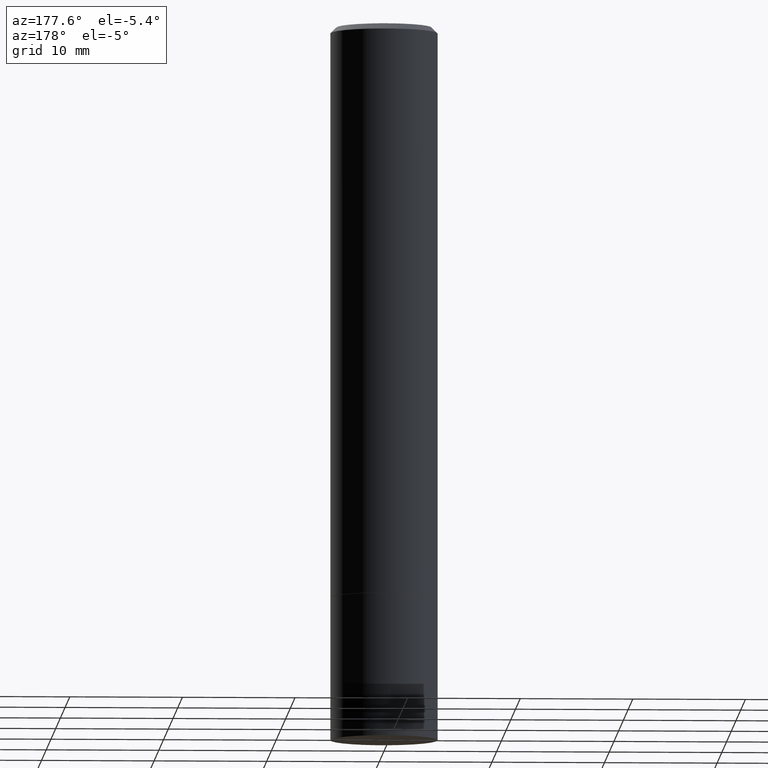
[diagram: clean part render]
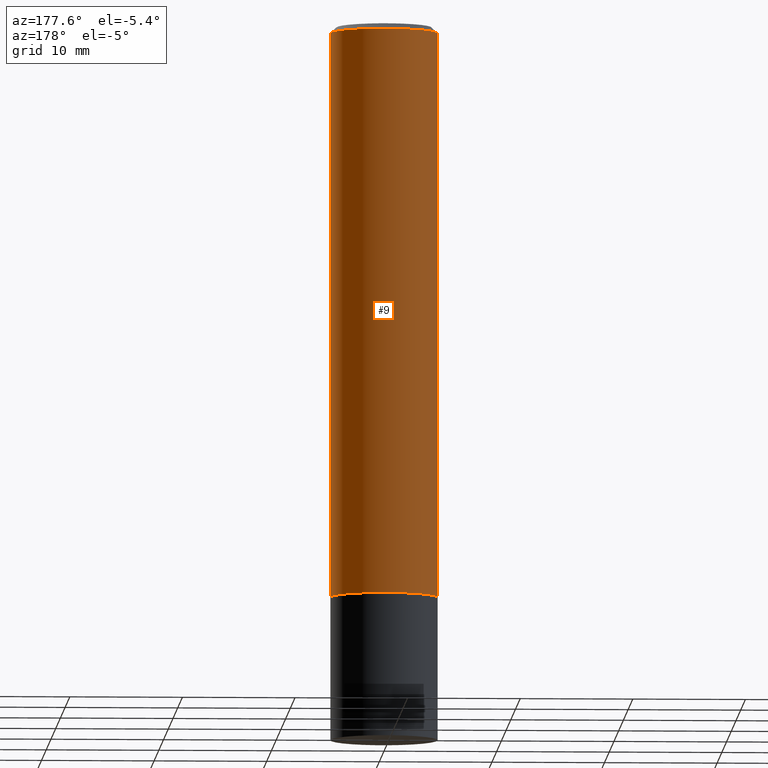
[diagram: same view with one face highlighted and labeled with its STEP entity id]
A machine part, auxiliary view. The second image highlights one B-rep face of the part: STEP entity #9.
In plain terms, the highlighted cylindrical surface (partial cylindrical patch) has radius 4.7625 mm, axis along (-0, 0, 1).
Its self-contained STEP definition (entity closure, byte-faithful):
#9 = ADVANCED_FACE ( 'NONE', ( #309 ), #48, .T. ) ;
#42 = CARTESIAN_POINT ( 'NONE',  ( 0.1875000000000000555, -8.288776698413622377E-15, -1.998999999999999888 ) ) ;
#48 = CYLINDRICAL_SURFACE ( 'NONE', #103, 0.1874999999999999167 ) ;
#51 = ORIENTED_EDGE ( 'NONE', *, *, #188, .F. ) ;
#59 = CARTESIAN_POINT ( 'NONE',  ( -0.1874999999999997780, 1.239475875289310330E-15, -0.02000000000000004205 ) ) ;
#81 = ORIENTED_EDGE ( 'NONE', *, *, #84, .T. ) ;
#84 = EDGE_CURVE ( 'NONE', #288, #102, #91, .T. ) ;
#91 = LINE ( 'NONE', #320, #162 ) ;
#99 = CARTESIAN_POINT ( 'NONE',  ( 0.1874999999999997780, -1.356173001359023691E-15, -0.02000000000000004205 ) ) ;
#102 = VERTEX_POINT ( 'NONE', #59 ) ;
#103 = AXIS2_PLACEMENT_3D ( 'NONE', #166, #180, #294 ) ;
#119 = CIRCLE ( 'NONE', #198, 0.1875000000000000555 ) ;
#122 = DIRECTION ( 'NONE',  ( -2.445468806185136877E-29, 3.491481338843145188E-15, 1.000000000000000000 ) ) ;
#153 = EDGE_CURVE ( 'NONE', #199, #299, #205, .T. ) ;
#159 = DIRECTION ( 'NONE',  ( 1.000000000000000000, -6.982962677686265922E-15, 0.000000000000000000 ) ) ;
#162 = VECTOR ( 'NONE', #122, 39.37007874015748143 ) ;
#166 = CARTESIAN_POINT ( 'NONE',  ( 0.000000000000000000, 0.000000000000000000, 0.000000000000000000 ) ) ;
#170 = ORIENTED_EDGE ( 'NONE', *, *, #153, .F. ) ;
#172 = EDGE_CURVE ( 'NONE', #199, #288, #119, .T. ) ;
#180 = DIRECTION ( 'NONE',  ( -2.445468806185136597E-29, 3.491481338843145583E-15, 1.000000000000000000 ) ) ;
#188 = EDGE_CURVE ( 'NONE', #299, #102, #343, .T. ) ;
#191 = DIRECTION ( 'NONE',  ( 1.000000000000000000, -6.982962677686265133E-15, 0.000000000000000000 ) ) ;
#198 = AXIS2_PLACEMENT_3D ( 'NONE', #236, #327, #159 ) ;
#199 = VERTEX_POINT ( 'NONE', #42 ) ;
#205 = LINE ( 'NONE', #324, #375 ) ;
#210 = DIRECTION ( 'NONE',  ( -2.445468806185136877E-29, 3.491481338843145188E-15, 1.000000000000000000 ) ) ;
#236 = CARTESIAN_POINT ( 'NONE',  ( 4.888492143564087591E-29, -6.979471196347447369E-15, -1.998999999999999888 ) ) ;
#243 = EDGE_LOOP ( 'NONE', ( #304, #81, #51, #170 ) ) ;
#288 = VERTEX_POINT ( 'NONE', #366 ) ;
#294 = DIRECTION ( 'NONE',  ( 1.000000000000000000, -6.982962677686265922E-15, 4.876176775795935793E-29 ) ) ;
#299 = VERTEX_POINT ( 'NONE', #99 ) ;
#304 = ORIENTED_EDGE ( 'NONE', *, *, #172, .T. ) ;
#309 = FACE_OUTER_BOUND ( 'NONE', #243, .T. ) ;
#320 = CARTESIAN_POINT ( 'NONE',  ( -0.1874999999999999167, 1.332267629550187257E-15, -9.223003294227943787E-30 ) ) ;
#324 = CARTESIAN_POINT ( 'NONE',  ( 0.1874999999999999167, -1.309305502066174219E-15, 9.142831454617375408E-30 ) ) ;
#327 = DIRECTION ( 'NONE',  ( -2.445468806185136597E-29, 3.491481338843145583E-15, 1.000000000000000000 ) ) ;
#342 = CARTESIAN_POINT ( 'NONE',  ( 4.890937612370283668E-31, -6.982962677686305168E-17, -0.02000000000000004205 ) ) ;
#343 = CIRCLE ( 'NONE', #387, 0.1874999999999997780 ) ;
#366 = CARTESIAN_POINT ( 'NONE',  ( -0.1875000000000000555, -2.192382782011965907E-15, -1.998999999999999888 ) ) ;
#372 = DIRECTION ( 'NONE',  ( -2.445468806185136597E-29, 3.491481338843145583E-15, 1.000000000000000000 ) ) ;
#375 = VECTOR ( 'NONE', #210, 39.37007874015748143 ) ;
#387 = AXIS2_PLACEMENT_3D ( 'NONE', #342, #372, #191 ) ;